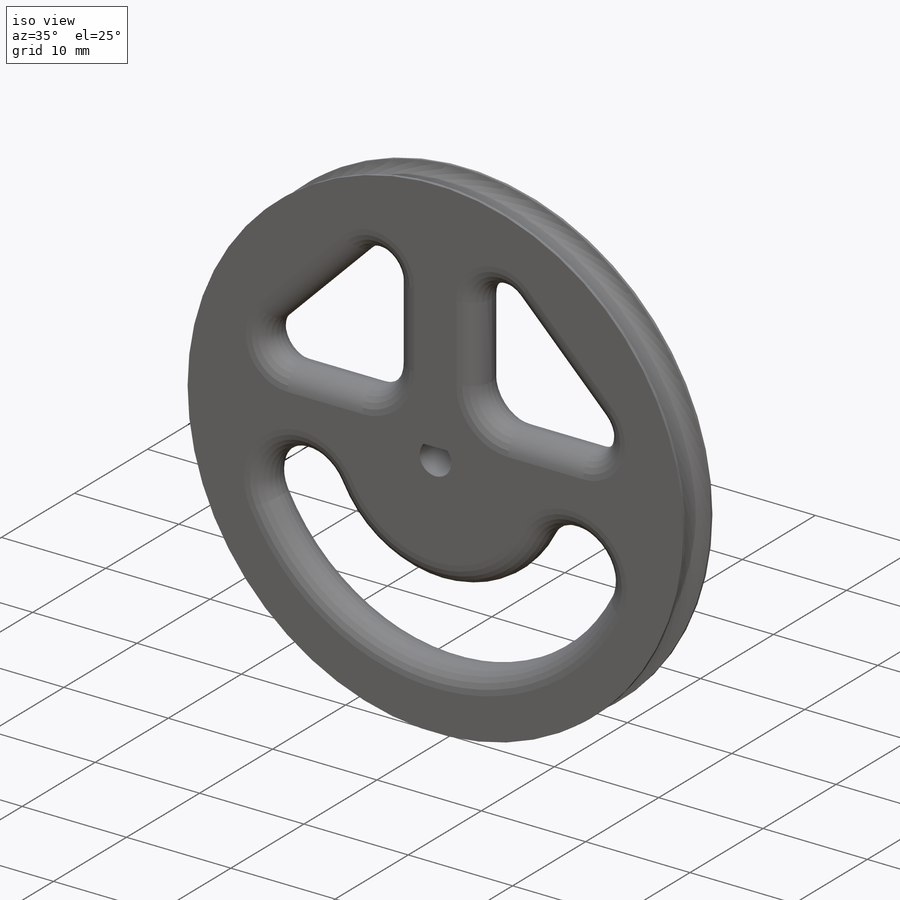
[diagram: iso view]
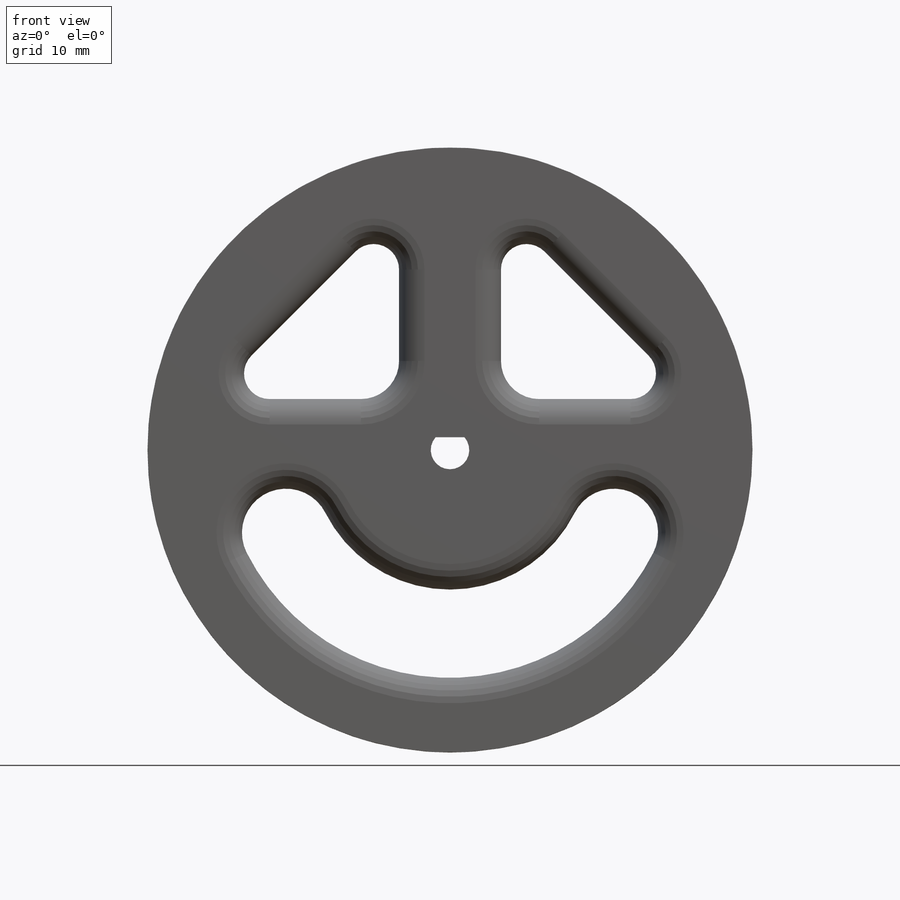
[diagram: front view]
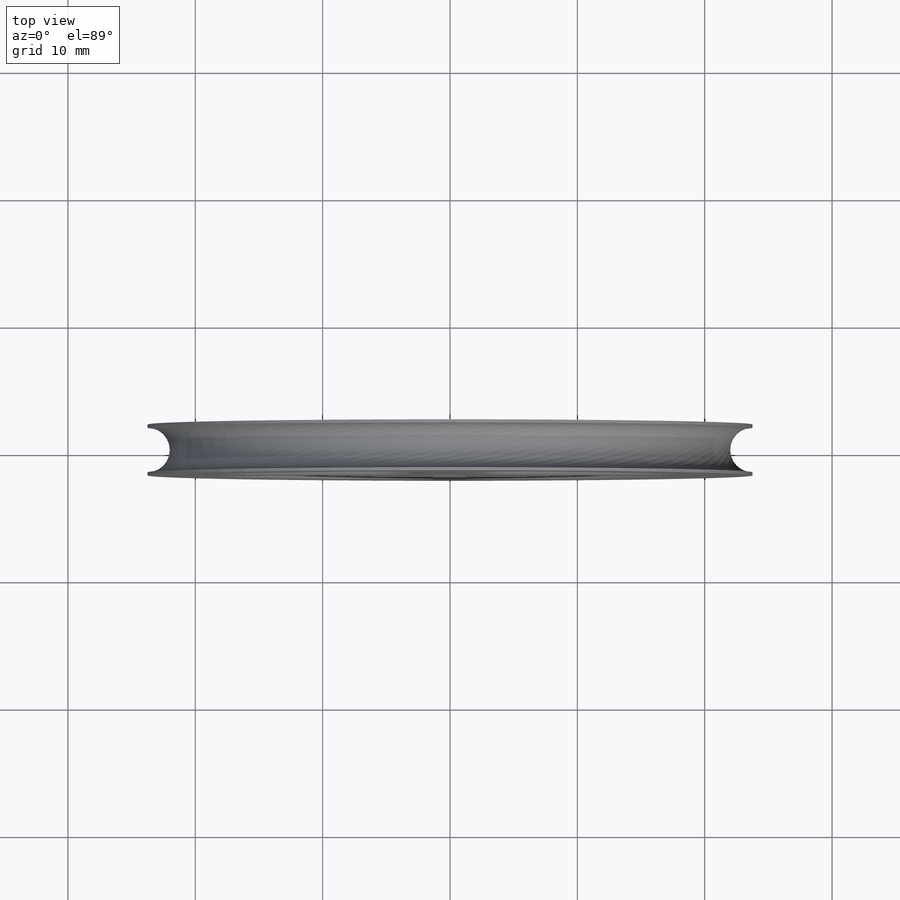
[diagram: top view]
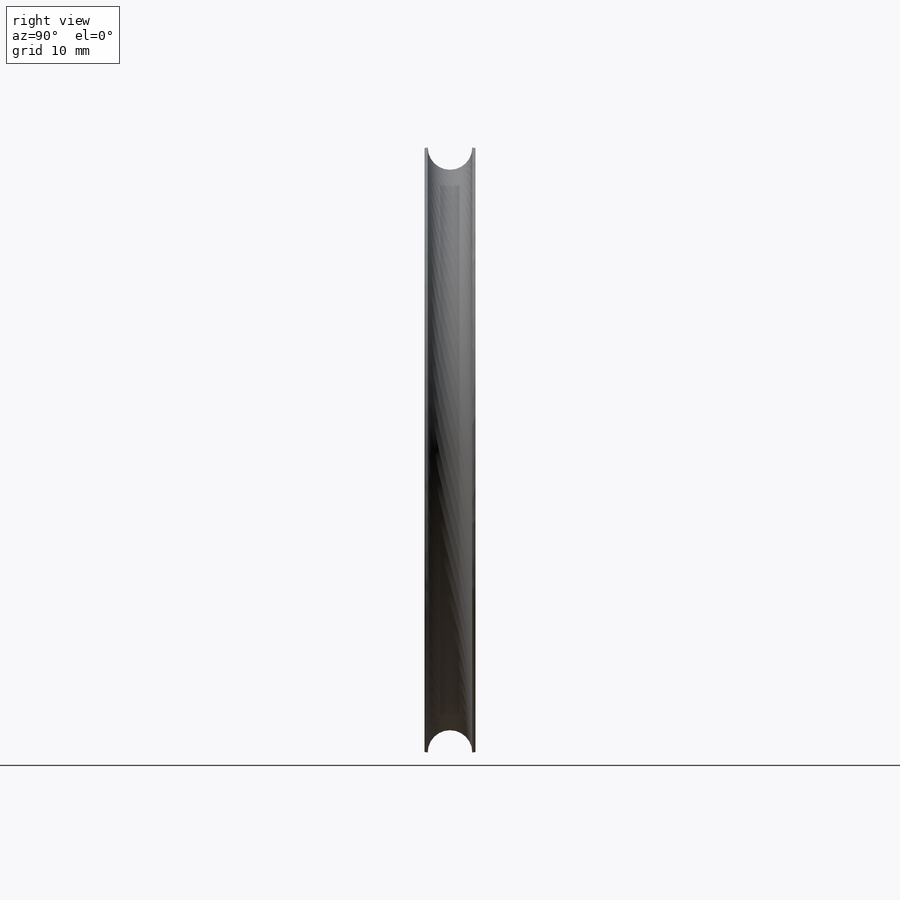
[diagram: right view]
SOLIDWORKS PART (.sldprt)
format: sldprt  version: not decoded by parser v0  size: 385,536 bytes
history: native  units: mm
features: plane x3, sketch x2, fillet x2, material x1, revolve x1, cut_extrude x1 (+8 scaffold rows collapsed)
feature tree (18):
  scaffold x8  (default folders/planes/origin — collapsed)
  material  "材质 <未指定>"
  plane  "前视基准面"
  plane  "上视基准面"
  plane  "右视基准面"
  sketch  "草图1"  dims[c1.D4=3.5mm c1.D1=24.0mm c1.D2=4.0mm c1.D3=2.0mm c2.D4=23.75mm]
  revolve  "旋转1"  Angle=360deg
  sketch  "草图2"  dims[c1.D1=~2.545891mm c1.D8=3.0mm c1.D9=2.0mm c2.D1=1.0mm c2.D2=6.5mm c2.D3=6.5mm c2.D4=4.0mm c2.D5=4.0mm c2.D6=15.0mm c2.D7=15.0mm]
  cut_extrude  "切除-拉伸1"  Depth=5mm
  fillet  "圆角1"  Radius=2mm
  fillet  "圆角2"  Radius=2mm
decode coverage: 6 of 6 modeling features carry decoded parameters
note: ~ marks probable driven/reference dimensions
note: suppression state not decoded; provenance and decode notes live in map.json
